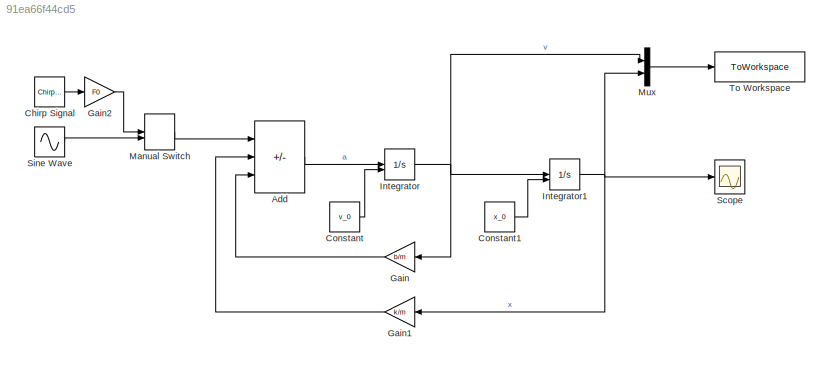
MODEL slx_91ea66f44cd5
KIND model
CONFIG AbsTol = auto
CONFIG EnableMultiTasking = off
CONFIG FixedStep = 1e-3
CONFIG InitFcn = Cv_7_init
CONFIG MaxStep = 1e-3
CONFIG MinStep = auto
CONFIG RelTol = 1e-3
CONFIG SampleTimeConstraint = Unconstrained
CONFIG SolverName = FixedStepAuto
CONFIG StartTime = 0.0
CONFIG StopTime = 500
BLOCK [Sum] Add
  IconShape = rectangular
  Inputs = +--
BLOCK [Reference] Chirp Signal  REF=simulink/Sources/Chirp Signal
  SourceBlock = simulink/Sources/Chirp Signal
  SourceType = chirp
BLOCK [Constant] Constant
  Value = v_0
BLOCK [Constant] Constant1
  Value = x_0
BLOCK [Gain] Gain
  Gain = b/m
BLOCK [Gain] Gain1
  Gain = k/m
BLOCK [Gain] Gain2
  Gain = F0
BLOCK [Integrator] Integrator
  InitialConditionSource = external
BLOCK [Integrator] Integrator1
  InitialConditionSource = external
BLOCK [ManualSwitch] Manual Switch
BLOCK [Mux] Mux
  DisplayOption = bar
  Inputs = 2
BLOCK [Scope] Scope
  Floating = off
  NumInputPorts = 1
  ScopeSpecificationString = Simulink.scopes.TimeScopeBlockCfg('CurrentConfiguration', extmgr.ConfigurationSet(extmgr.Configuration('Core','General UI',true),extmgr.Configuration('Core','Source UI',true),extmgr.Configuration('Sources','WiredSimulink',true),extmgr.Configuration('Visuals','Time Domain',true,'SerializedDisplays',{struct('MinYLimReal','-0.08875','MaxYLimReal','0.08873','YLabelReal','','MinYLimMag','0.00000','MaxY...<+1488ch>
BLOCK [Sin] Sine Wave
  Amplitude = F0
  Frequency = omega
  SampleTime = 0
BLOCK [ToWorkspace] To Workspace
  FixptAsFi = on
  MaxDataPoints = inf
  SampleTime = -1
  SaveFormat = Timeseries
  VariableName = simout
LINE Add:1 -> Integrator:1
LINE Chirp Signal:1 -> Gain2:1
LINE Constant1:1 -> Integrator1:2
LINE Constant:1 -> Integrator:2
LINE Gain1:1 -> Add:2
LINE Gain2:1 -> Manual Switch:1
LINE Gain:1 -> Add:3
NET Integrator1:1 -> Gain1:1, Mux:2, Scope:1
NET Integrator:1 -> Gain:1, Integrator1:1, Mux:1
LINE Manual Switch:1 -> Add:1
LINE Mux:1 -> To Workspace:1
LINE Sine Wave:1 -> Manual Switch:2
note: NET lines group one-source signal fan-out (src -> all destinations, sorted); 1:1 wires keep LINE
